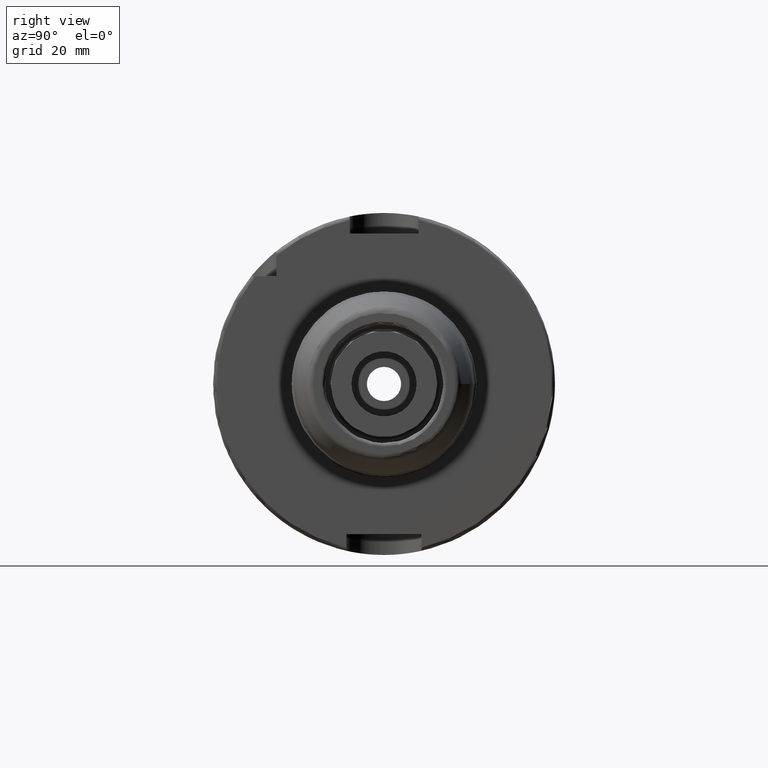
[diagram: clean part render]
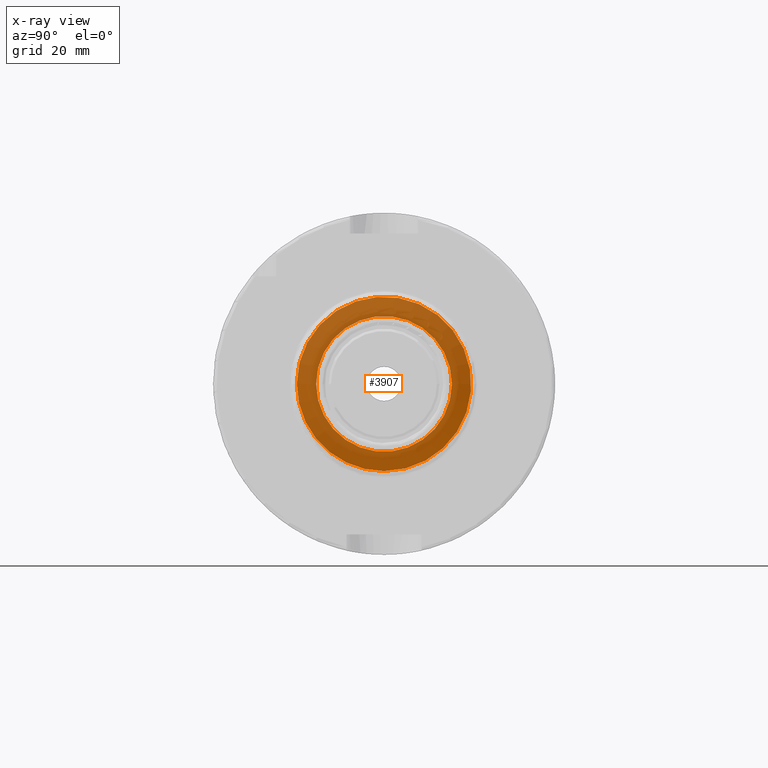
[diagram: x-ray — body ghosted, one internal face saturated and labeled with its STEP entity id]
A machine part, right view, then the same camera in x-ray: the body is ghosted and one INTERNAL B-rep face — a face not visible from any outside direction — is saturated and labeled: STEP entity #3907.
In plain terms, the highlighted planar face has unit normal (-1, 0, 0).
Its self-contained STEP definition (entity closure, byte-faithful):
#254=FACE_BOUND('',#1162,.T.);
#321=PLANE('',#4399);
#938=FACE_OUTER_BOUND('',#1161,.T.);
#1161=EDGE_LOOP('',(#3567,#3568));
#1162=EDGE_LOOP('',(#3569));
#1403=CIRCLE('',#4396,19.85);
#1406=CIRCLE('',#4400,25.5);
#1407=CIRCLE('',#4401,25.5);
#1826=VERTEX_POINT('',#9218);
#1829=VERTEX_POINT('',#9226);
#1830=VERTEX_POINT('',#9227);
#2417=EDGE_CURVE('',#1826,#1826,#1403,.T.);
#2421=EDGE_CURVE('',#1829,#1830,#1406,.T.);
#2422=EDGE_CURVE('',#1830,#1829,#1407,.T.);
#3567=ORIENTED_EDGE('',*,*,#2421,.F.);
#3568=ORIENTED_EDGE('',*,*,#2422,.F.);
#3569=ORIENTED_EDGE('',*,*,#2417,.F.);
#3907=ADVANCED_FACE('',(#938,#254),#321,.T.);
#4396=AXIS2_PLACEMENT_3D('',#9219,#5434,#5435);
#4399=AXIS2_PLACEMENT_3D('',#9225,#5441,#5442);
#4400=AXIS2_PLACEMENT_3D('',#9228,#5443,#5444);
#4401=AXIS2_PLACEMENT_3D('',#9229,#5445,#5446);
#5434=DIRECTION('center_axis',(-1.,0.,0.));
#5435=DIRECTION('ref_axis',(0.,-1.,0.));
#5441=DIRECTION('center_axis',(-1.,0.,0.));
#5442=DIRECTION('ref_axis',(0.,0.,1.));
#5443=DIRECTION('center_axis',(1.,0.,0.));
#5444=DIRECTION('ref_axis',(0.,-1.,1.83697019872103E-16));
#5445=DIRECTION('center_axis',(1.,0.,0.));
#5446=DIRECTION('ref_axis',(0.,-1.,1.83697019872103E-16));
#9218=CARTESIAN_POINT('',(0.,19.85,-2.4309238963075E-15));
#9219=CARTESIAN_POINT('Origin',(0.,0.,0.));
#9225=CARTESIAN_POINT('Origin',(0.,26.5,0.));
#9226=CARTESIAN_POINT('',(0.,25.5,-1.56142466891288E-15));
#9227=CARTESIAN_POINT('',(0.,-3.12284933782575E-15,25.5));
#9228=CARTESIAN_POINT('Origin',(0.,0.,0.));
#9229=CARTESIAN_POINT('Origin',(0.,0.,0.));